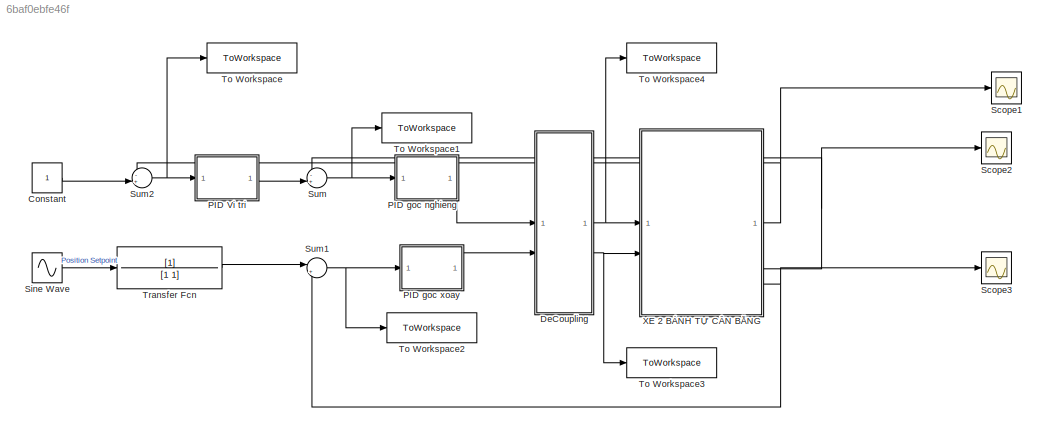
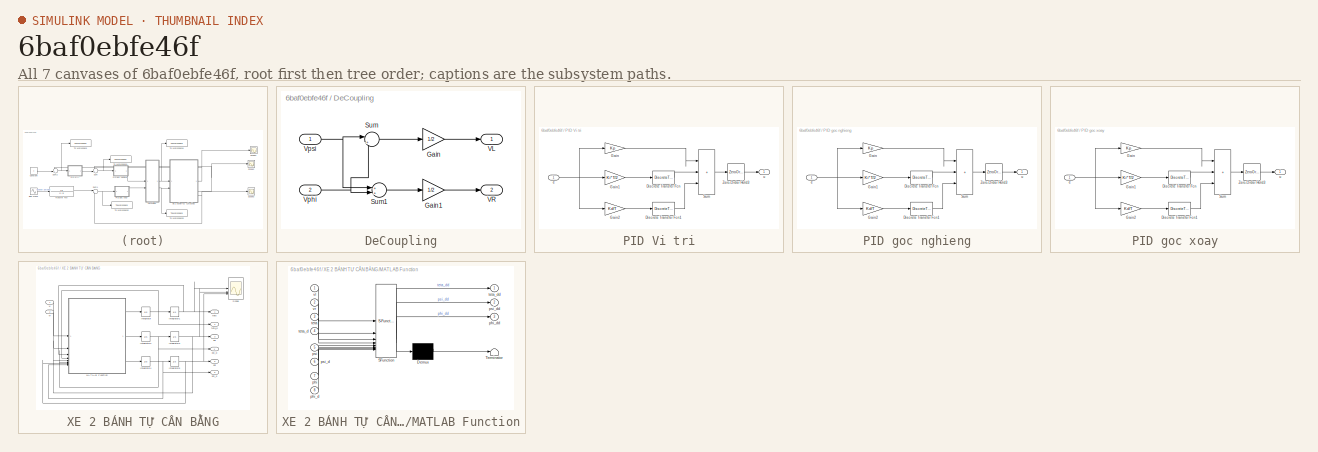
[diagram: thumbnail index - all 7 canvases of the model, root first then tree order]
MODEL slx_6baf0ebfe46f
KIND model
CONFIG AbsTol = auto
CONFIG EnableMultiTasking = off
CONFIG FixedStep = 0.01
CONFIG MaxStep = auto
CONFIG MinStep = auto
CONFIG RelTol = 1e-3
CONFIG SampleTimeConstraint = Unconstrained
CONFIG SolverName = FixedStepAuto
CONFIG StartTime = 0.0
CONFIG StopTime = 50
BLOCK [Constant] Constant
BLOCK [SubSystem] DeCoupling
BLOCK [Gain] DeCoupling/Gain
  Gain = 1/2
BLOCK [Gain] DeCoupling/Gain1
  Gain = 1/2
BLOCK [Sum] DeCoupling/Sum
  Inputs = |+-
BLOCK [Sum] DeCoupling/Sum1
  Inputs = ++|
BLOCK [Outport] DeCoupling/VL
BLOCK [Outport] DeCoupling/VR
  Port = 2
BLOCK [Inport] DeCoupling/Vphi
  Port = 2
BLOCK [Inport] DeCoupling/Vpsi
BLOCK [SubSystem] PID Vi tri
BLOCK [DiscreteTransferFcn] PID Vi tri/Discrete Transfer Fcn
  Denominator = [1 -1]
  InputPortMap = u0
  Numerator = [1 1]
BLOCK [DiscreteTransferFcn] PID Vi tri/Discrete Transfer Fcn1
  Denominator = [1 0]
  InputPortMap = u0
  Numerator = [1 -1]
BLOCK [Gain] PID Vi tri/Gain
  Gain = Kp
BLOCK [Gain] PID Vi tri/Gain1
  Gain = Ki*T/2
BLOCK [Gain] PID Vi tri/Gain2
  Gain = Kd/T
BLOCK [Sum] PID Vi tri/Sum
  IconShape = rectangular
  Inputs = |+++
BLOCK [ZeroOrderHold] PID Vi tri/Zero-Order Hold3
  SampleTime = 0.01
BLOCK [Inport] PID Vi tri/e
BLOCK [Outport] PID Vi tri/u
BLOCK [SubSystem] PID goc nghieng
BLOCK [DiscreteTransferFcn] PID goc nghieng/Discrete Transfer Fcn
  Denominator = [1 -1]
  InputPortMap = u0
  Numerator = [1 1]
BLOCK [DiscreteTransferFcn] PID goc nghieng/Discrete Transfer Fcn1
  Denominator = [1 0]
  InputPortMap = u0
  Numerator = [1 -1]
BLOCK [Gain] PID goc nghieng/Gain
  Gain = Kp
BLOCK [Gain] PID goc nghieng/Gain1
  Gain = Ki*T/2
BLOCK [Gain] PID goc nghieng/Gain2
  Gain = Kd/T
BLOCK [Sum] PID goc nghieng/Sum
  IconShape = rectangular
  Inputs = |+++
BLOCK [ZeroOrderHold] PID goc nghieng/Zero-Order Hold3
  SampleTime = 0.01
BLOCK [Inport] PID goc nghieng/e
BLOCK [Outport] PID goc nghieng/u
BLOCK [SubSystem] PID goc xoay
BLOCK [DiscreteTransferFcn] PID goc xoay/Discrete Transfer Fcn
  Denominator = [1 -1]
  InputPortMap = u0
  Numerator = [1 1]
BLOCK [DiscreteTransferFcn] PID goc xoay/Discrete Transfer Fcn1
  Denominator = [1 0]
  InputPortMap = u0
  Numerator = [1 -1]
BLOCK [Gain] PID goc xoay/Gain
  Gain = Kp
BLOCK [Gain] PID goc xoay/Gain1
  Gain = Ki*T/2
BLOCK [Gain] PID goc xoay/Gain2
  Gain = Kd/T
BLOCK [Sum] PID goc xoay/Sum
  IconShape = rectangular
  Inputs = |+++
BLOCK [ZeroOrderHold] PID goc xoay/Zero-Order Hold3
  SampleTime = 0.01
BLOCK [Inport] PID goc xoay/e
BLOCK [Outport] PID goc xoay/u
BLOCK [Scope] Scope1
  Floating = off
  NumInputPorts = 1
  ScopeSpecificationString = Simulink.scopes.TimeScopeBlockCfg('CurrentConfiguration', extmgr.ConfigurationSet(extmgr.Configuration('Core','General UI',true),extmgr.Configuration('Core','Source UI',true),extmgr.Configuration('Sources','WiredSimulink',true,'DataLoggingVariableName','ScopeData2'),extmgr.Configuration('Visuals','Time Domain',true,'SerializedDisplays',{struct('MinYLimReal','-0.5462','MaxYLimReal','4.92566','YLabe...<+1380ch>
BLOCK [Scope] Scope2
  Floating = off
  NumInputPorts = 1
  ScopeSpecificationString = Simulink.scopes.TimeScopeBlockCfg('CurrentConfiguration', extmgr.ConfigurationSet(extmgr.Configuration('Core','General UI',true),extmgr.Configuration('Core','Source UI',true),extmgr.Configuration('Sources','WiredSimulink',true,'DataLoggingVariableName','ScopeData3'),extmgr.Configuration('Visuals','Time Domain',true,'SerializedDisplays',{struct('MinYLimReal','-0.5463','MaxYLimReal','4.93628','YLabe...<+1380ch>
BLOCK [Scope] Scope3
  Floating = off
  NumInputPorts = 1
  ScopeSpecificationString = Simulink.scopes.TimeScopeBlockCfg('CurrentConfiguration', extmgr.ConfigurationSet(extmgr.Configuration('Core','General UI',true),extmgr.Configuration('Core','Source UI',true),extmgr.Configuration('Sources','WiredSimulink',true,'DataLoggingVariableName','ScopeData4'),extmgr.Configuration('Visuals','Time Domain',true,'SerializedDisplays',{struct('MinYLimReal','-3.92946','MaxYLimReal','6.72257','YLab...<+1382ch>
BLOCK [Sin] Sine Wave
  SampleTime = 0
BLOCK [Sum] Sum
  Inputs = -+|
BLOCK [Sum] Sum1
  Inputs = |+-
BLOCK [Sum] Sum2
  Inputs = -+|
BLOCK [ToWorkspace] To Workspace
  FixptAsFi = on
  MaxDataPoints = inf
  SampleTime = -1
  VariableName = e
BLOCK [ToWorkspace] To Workspace1
  FixptAsFi = on
  MaxDataPoints = inf
  SampleTime = -1
  VariableName = e1
BLOCK [ToWorkspace] To Workspace2
  FixptAsFi = on
  MaxDataPoints = inf
  SampleTime = -1
  VariableName = e2
BLOCK [ToWorkspace] To Workspace3
  FixptAsFi = on
  MaxDataPoints = inf
  SampleTime = -1
  VariableName = u1
BLOCK [ToWorkspace] To Workspace4
  FixptAsFi = on
  MaxDataPoints = inf
  SampleTime = -1
  VariableName = u
BLOCK [TransferFcn] Transfer Fcn
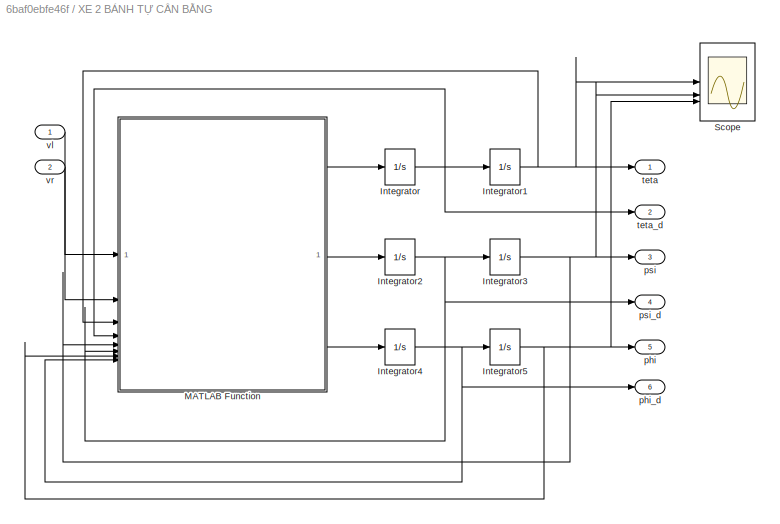
BLOCK [SubSystem] XE 2 BÁNH TỰ CÂN BẰNG
BLOCK [Integrator] XE 2 BÁNH TỰ CÂN BẰNG/Integrator
  InitialCondition = x2_init
BLOCK [Integrator] XE 2 BÁNH TỰ CÂN BẰNG/Integrator1
  InitialCondition = x1_init
BLOCK [Integrator] XE 2 BÁNH TỰ CÂN BẰNG/Integrator2
  InitialCondition = x5_init
BLOCK [Integrator] XE 2 BÁNH TỰ CÂN BẰNG/Integrator3
  InitialCondition = x4_init
BLOCK [Integrator] XE 2 BÁNH TỰ CÂN BẰNG/Integrator4
  InitialCondition = x8_init
BLOCK [Integrator] XE 2 BÁNH TỰ CÂN BẰNG/Integrator5
  InitialCondition = x7_init
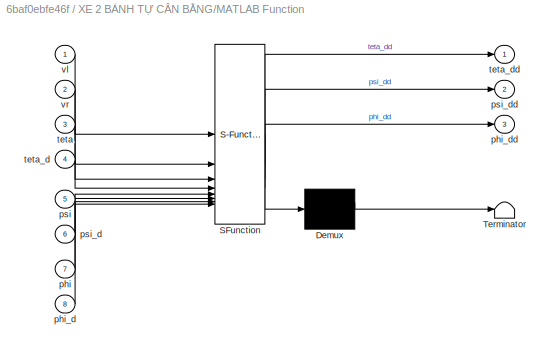
BLOCK [SubSystem] XE 2 BÁNH TỰ CÂN BẰNG/MATLAB Function
  ErrorFcn = Stateflow.Translate.translate
  PermitHierarchicalResolution = ExplicitOnly
  SFBlockType = MATLAB Function
  TreatAsAtomicUnit = on
BLOCK [Demux] XE 2 BÁNH TỰ CÂN BẰNG/MATLAB Function/ Demux 
  Outputs = 1
BLOCK [S-Function] XE 2 BÁNH TỰ CÂN BẰNG/MATLAB Function/ SFunction 
  EnableBusSupport = on
  FunctionName = sf_sfun
  PortCounts = [8 4]
  SFcnIsStateOwnerBlock = off
  SFunctionDeploymentMode = off
  Tag = Stateflow S-Function 4
BLOCK [Terminator] XE 2 BÁNH TỰ CÂN BẰNG/MATLAB Function/ Terminator 
BLOCK [Inport] XE 2 BÁNH TỰ CÂN BẰNG/MATLAB Function/phi
  Port = 7
BLOCK [Inport] XE 2 BÁNH TỰ CÂN BẰNG/MATLAB Function/phi_d
  Port = 8
BLOCK [Outport] XE 2 BÁNH TỰ CÂN BẰNG/MATLAB Function/phi_dd
  Port = 3
BLOCK [Inport] XE 2 BÁNH TỰ CÂN BẰNG/MATLAB Function/psi
  Port = 5
BLOCK [Inport] XE 2 BÁNH TỰ CÂN BẰNG/MATLAB Function/psi_d
  Port = 6
BLOCK [Outport] XE 2 BÁNH TỰ CÂN BẰNG/MATLAB Function/psi_dd
  Port = 2
BLOCK [Inport] XE 2 BÁNH TỰ CÂN BẰNG/MATLAB Function/teta
  Port = 3
BLOCK [Inport] XE 2 BÁNH TỰ CÂN BẰNG/MATLAB Function/teta_d
  Port = 4
BLOCK [Outport] XE 2 BÁNH TỰ CÂN BẰNG/MATLAB Function/teta_dd
BLOCK [Inport] XE 2 BÁNH TỰ CÂN BẰNG/MATLAB Function/vl
BLOCK [Inport] XE 2 BÁNH TỰ CÂN BẰNG/MATLAB Function/vr
  Port = 2
BLOCK [Scope] XE 2 BÁNH TỰ CÂN BẰNG/Scope
  Floating = off
  NumInputPorts = 3
  ScopeSpecificationString = Simulink.scopes.TimeScopeBlockCfg('CurrentConfiguration', extmgr.ConfigurationSet(extmgr.Configuration('Core','General UI',true,'FigureColor',[1 1 1]),extmgr.Configuration('Core','Source UI',true),extmgr.Configuration('Sources','WiredSimulink',true,'DataLoggingVariableName','ScopeData1'),extmgr.Configuration('Visuals','Time Domain',true,'SerializedDisplays',{struct('MinYLimReal','-3.05105','MaxYLi...<+3124ch>
BLOCK [Outport] XE 2 BÁNH TỰ CÂN BẰNG/phi
  Port = 5
BLOCK [Outport] XE 2 BÁNH TỰ CÂN BẰNG/phi_d
  Port = 6
BLOCK [Outport] XE 2 BÁNH TỰ CÂN BẰNG/psi
  Port = 3
BLOCK [Outport] XE 2 BÁNH TỰ CÂN BẰNG/psi_d
  Port = 4
BLOCK [Outport] XE 2 BÁNH TỰ CÂN BẰNG/teta
BLOCK [Outport] XE 2 BÁNH TỰ CÂN BẰNG/teta_d
  Port = 2
BLOCK [Inport] XE 2 BÁNH TỰ CÂN BẰNG/vl
BLOCK [Inport] XE 2 BÁNH TỰ CÂN BẰNG/vr
  Port = 2
LINE Constant:1 -> Sum2:2
LINE DeCoupling/Gain1:1 -> DeCoupling/VR:1
LINE DeCoupling/Gain:1 -> DeCoupling/VL:1
LINE DeCoupling/Sum1:1 -> DeCoupling/Gain1:1
LINE DeCoupling/Sum:1 -> DeCoupling/Gain:1
NET DeCoupling/Vphi:1 -> DeCoupling/Sum1:2, DeCoupling/Sum:2
NET DeCoupling/Vpsi:1 -> DeCoupling/Sum1:1, DeCoupling/Sum:1
NET DeCoupling:1 -> To Workspace4:1, XE 2 BÁNH TỰ CÂN BẰNG:1
NET DeCoupling:2 -> To Workspace3:1, XE 2 BÁNH TỰ CÂN BẰNG:2
LINE PID Vi tri/Discrete Transfer Fcn1:1 -> PID Vi tri/Sum:3
LINE PID Vi tri/Discrete Transfer Fcn:1 -> PID Vi tri/Sum:2
LINE PID Vi tri/Gain1:1 -> PID Vi tri/Discrete Transfer Fcn:1
LINE PID Vi tri/Gain2:1 -> PID Vi tri/Discrete Transfer Fcn1:1
LINE PID Vi tri/Gain:1 -> PID Vi tri/Sum:1
LINE PID Vi tri/Sum:1 -> PID Vi tri/Zero-Order Hold3:1
LINE PID Vi tri/Zero-Order Hold3:1 -> PID Vi tri/u:1
NET PID Vi tri/e:1 -> PID Vi tri/Gain1:1, PID Vi tri/Gain2:1, PID Vi tri/Gain:1
LINE PID Vi tri:1 -> Sum:2
LINE PID goc nghieng/Discrete Transfer Fcn1:1 -> PID goc nghieng/Sum:3
LINE PID goc nghieng/Discrete Transfer Fcn:1 -> PID goc nghieng/Sum:2
LINE PID goc nghieng/Gain1:1 -> PID goc nghieng/Discrete Transfer Fcn:1
LINE PID goc nghieng/Gain2:1 -> PID goc nghieng/Discrete Transfer Fcn1:1
LINE PID goc nghieng/Gain:1 -> PID goc nghieng/Sum:1
LINE PID goc nghieng/Sum:1 -> PID goc nghieng/Zero-Order Hold3:1
LINE PID goc nghieng/Zero-Order Hold3:1 -> PID goc nghieng/u:1
NET PID goc nghieng/e:1 -> PID goc nghieng/Gain1:1, PID goc nghieng/Gain2:1, PID goc nghieng/Gain:1
LINE PID goc nghieng:1 -> DeCoupling:1
LINE PID goc xoay/Discrete Transfer Fcn1:1 -> PID goc xoay/Sum:3
LINE PID goc xoay/Discrete Transfer Fcn:1 -> PID goc xoay/Sum:2
LINE PID goc xoay/Gain1:1 -> PID goc xoay/Discrete Transfer Fcn:1
LINE PID goc xoay/Gain2:1 -> PID goc xoay/Discrete Transfer Fcn1:1
LINE PID goc xoay/Gain:1 -> PID goc xoay/Sum:1
LINE PID goc xoay/Sum:1 -> PID goc xoay/Zero-Order Hold3:1
LINE PID goc xoay/Zero-Order Hold3:1 -> PID goc xoay/u:1
NET PID goc xoay/e:1 -> PID goc xoay/Gain1:1, PID goc xoay/Gain2:1, PID goc xoay/Gain:1
LINE PID goc xoay:1 -> DeCoupling:2
LINE Sine Wave:1 -> Transfer Fcn:1
NET Sum1:1 -> PID goc xoay:1, To Workspace2:1
NET Sum2:1 -> PID Vi tri:1, To Workspace:1
NET Sum:1 -> PID goc nghieng:1, To Workspace1:1
LINE Transfer Fcn:1 -> Sum1:1
NET XE 2 BÁNH TỰ CÂN BẰNG/Integrator1:1 -> XE 2 BÁNH TỰ CÂN BẰNG/MATLAB Function:3, XE 2 BÁNH TỰ CÂN BẰNG/Scope:1, XE 2 BÁNH TỰ CÂN BẰNG/teta:1
NET XE 2 BÁNH TỰ CÂN BẰNG/Integrator2:1 -> XE 2 BÁNH TỰ CÂN BẰNG/Integrator3:1, XE 2 BÁNH TỰ CÂN BẰNG/MATLAB Function:6, XE 2 BÁNH TỰ CÂN BẰNG/psi_d:1
NET XE 2 BÁNH TỰ CÂN BẰNG/Integrator3:1 -> XE 2 BÁNH TỰ CÂN BẰNG/MATLAB Function:5, XE 2 BÁNH TỰ CÂN BẰNG/Scope:2, XE 2 BÁNH TỰ CÂN BẰNG/psi:1
NET XE 2 BÁNH TỰ CÂN BẰNG/Integrator4:1 -> XE 2 BÁNH TỰ CÂN BẰNG/Integrator5:1, XE 2 BÁNH TỰ CÂN BẰNG/MATLAB Function:8, XE 2 BÁNH TỰ CÂN BẰNG/phi_d:1
NET XE 2 BÁNH TỰ CÂN BẰNG/Integrator5:1 -> XE 2 BÁNH TỰ CÂN BẰNG/MATLAB Function:7, XE 2 BÁNH TỰ CÂN BẰNG/Scope:3, XE 2 BÁNH TỰ CÂN BẰNG/phi:1
NET XE 2 BÁNH TỰ CÂN BẰNG/Integrator:1 -> XE 2 BÁNH TỰ CÂN BẰNG/Integrator1:1, XE 2 BÁNH TỰ CÂN BẰNG/MATLAB Function:4, XE 2 BÁNH TỰ CÂN BẰNG/teta_d:1
LINE XE 2 BÁNH TỰ CÂN BẰNG/MATLAB Function:1 -> XE 2 BÁNH TỰ CÂN BẰNG/Integrator:1
LINE XE 2 BÁNH TỰ CÂN BẰNG/MATLAB Function:2 -> XE 2 BÁNH TỰ CÂN BẰNG/Integrator2:1
LINE XE 2 BÁNH TỰ CÂN BẰNG/MATLAB Function:3 -> XE 2 BÁNH TỰ CÂN BẰNG/Integrator4:1
LINE XE 2 BÁNH TỰ CÂN BẰNG/vl:1 -> XE 2 BÁNH TỰ CÂN BẰNG/MATLAB Function:1
LINE XE 2 BÁNH TỰ CÂN BẰNG/vr:1 -> XE 2 BÁNH TỰ CÂN BẰNG/MATLAB Function:2
NET XE 2 BÁNH TỰ CÂN BẰNG:1 -> Scope1:1, Sum2:1
NET XE 2 BÁNH TỰ CÂN BẰNG:3 -> Scope2:1, Sum:1
NET XE 2 BÁNH TỰ CÂN BẰNG:5 -> Scope3:1, Sum1:2
note: NET lines group one-source signal fan-out (src -> all destinations, sorted); 1:1 wires keep LINE
CHART XE 2 BÁNH TỰ CÂN BẰNG/MATLAB Function states=1 transitions=1
  STATE_LABEL 'eML_blk_kernel()'
  STATE_LABEL 'SCRIPT:\nfunction [teta_dd,psi_dd,phi_dd] = fcn(vl,vr,teta,teta_d,psi,psi_d,phi,phi_d)\n\n%% Thông số hệ thống xe 2 bánh tự cân bằng dùng LQR\nm = 1; %Khoi luong banh xe\nM = 5; %Khoi luong robot\nR = 0.0725; %ban kinh ban xe\nW = 0.24; %Chieu rong robot\nD = 0.2; %Chieu sau robot\nH = 0.5; %Chieu cao robot\nL = 0.18; %khoang cach tu trong tam den truc banh xe\nfw = 0.18; %He so ma sat giua banh xe voi mat p...<+2241ch>'
CHART  states=0 transitions=0
